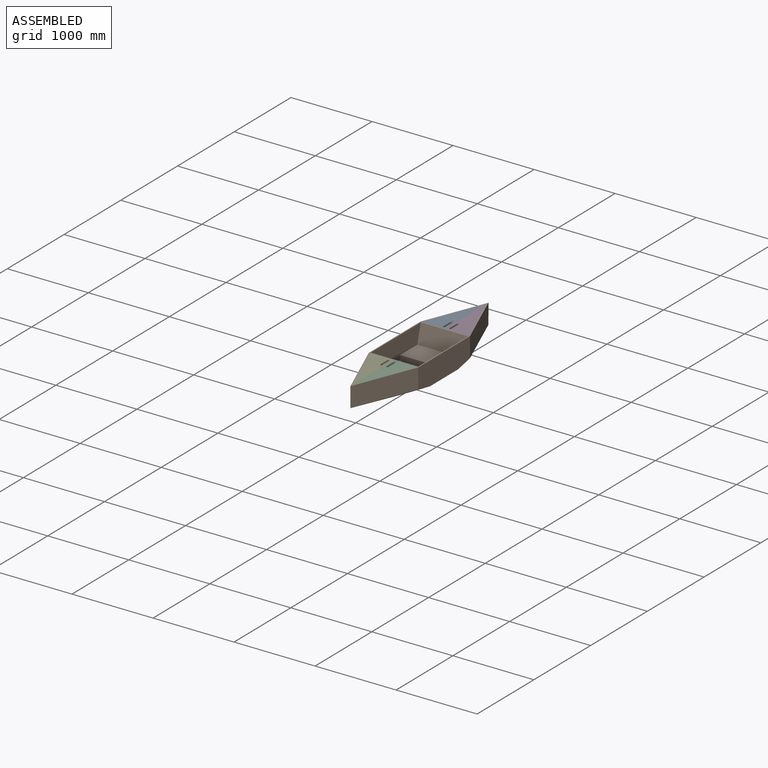
[diagram: assembled view]
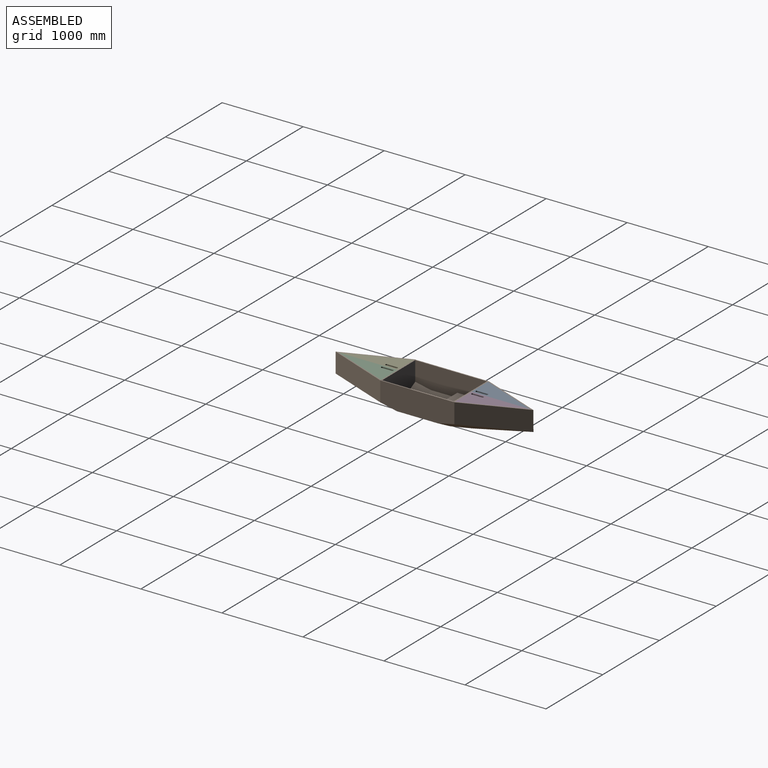
[diagram: assembled view, second angle]
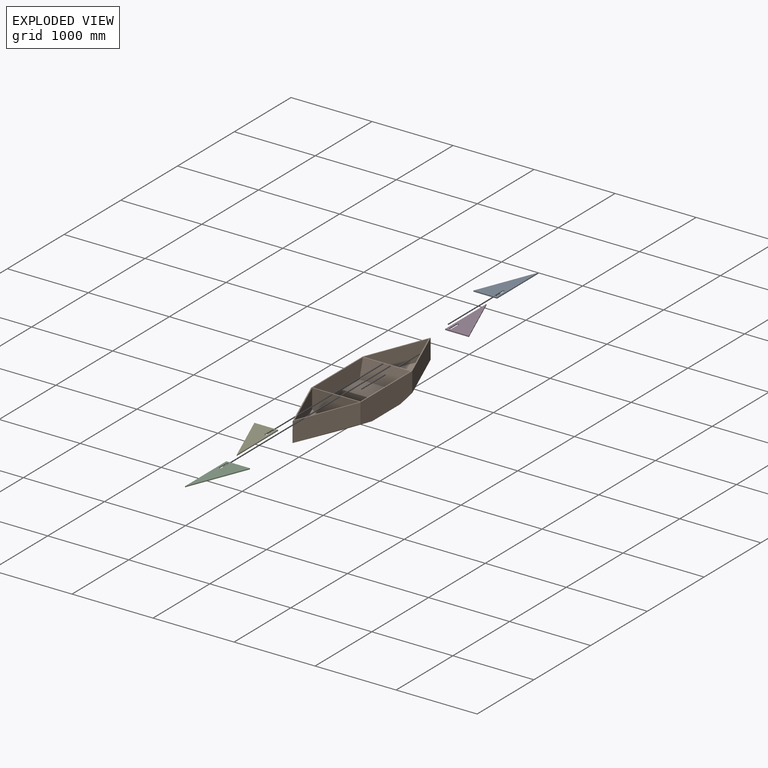
[diagram: exploded view]
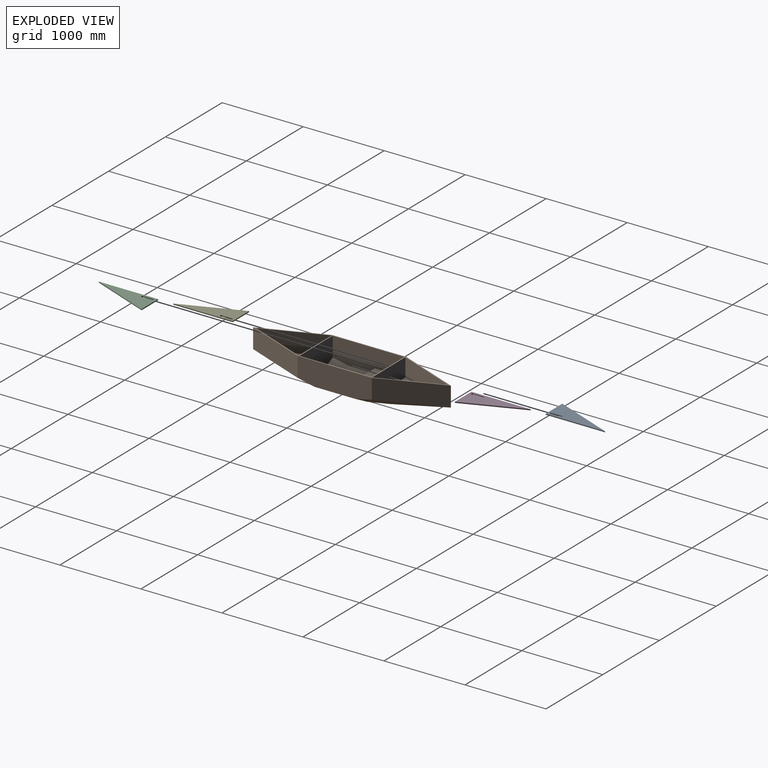
[diagram: exploded view, second angle]
ASSEMBLY  parts=5 mates=4
PART A: 9 faces, bbox 292.1x730.3x12.7 mm
  f0: cylinder r=12.7mm len=25.4mm, axis (0,0,-1), area 506.7mm2, adj f1,f6,f7,f8
  f1: plane 127x12.7mm, normal (1,0,0), area 1612.9mm2, adj f0,f2,f7,f8
  f2: cylinder r=12.7mm len=25.4mm, axis (0,0,-1), area 506.7mm2, adj f1,f6,f7,f8
  f3: plane 730.25x292.1mm, normal (0.93,0.37,0), area 9988.6mm2, adj f4,f5,f7,f8
  f4: plane 730.25x12.7mm, normal (-1,0,0), area 9274.2mm2, adj f3,f5,f7,f8
  f5: plane 292.1x12.7mm, normal (0,-1,0), area 3709.7mm2, adj f3,f4,f7,f8
  f6: plane 127x12.7mm, normal (-1,0,0), area 1612.9mm2, adj f0,f2,f7,f8
  f7: plane 730.25x292.1mm, normal (0,0,1), area 102920.5mm2, adj f0,f1,f2,f3,f4,f5,f6
  f8: plane 730.25x292.1mm, normal (0,0,-1), area 102920.5mm2, adj f0,f1,f2,f3,f4,f5,f6
PART B: 61 faces, bbox 609.6x2438.4x406.4 mm
  f0: plane 584.2x225.06mm, normal (0,1,0), area 131477.7mm2, adj f14,f25,f26,f47
  f1: plane 969.62x304.8mm, normal (-0.46,-0.19,-0.87), area 196259.8mm2, adj f2,f6,f19,f20,f21,f44,f46
  f2: plane 969.62x304.8mm, normal (0.46,-0.19,-0.87), area 196259.7mm2, adj f1,f7,f15,f16,f21,f42,f45
  f3: plane 2.98x2.38mm, normal (0,0,1), area 3.5mm2, adj f4,f5,f39
  f4: plane 730.25x292.1mm, normal (0.46,0.19,0.87), area 123150.2mm2, adj f3,f5,f27,f39
  f5: plane 730.25x292.1mm, normal (-0.46,0.19,0.87), area 123150.2mm2, adj f3,f4,f24,f39
  f6: plane 499.16x217.88mm, normal (-0.47,0,-0.88), area 123396.4mm2, adj f1,f19,f21,f22
  f7: plane 499.16x217.88mm, normal (0.47,0,-0.88), area 123396.4mm2, adj f2,f16,f21,f23
  f8: plane 883.66x282mm, normal (-1,0,0), area 217597.3mm2, adj f13,f14,f32,f34,f35,f38,f40
  f9: plane 365.55x44.25mm, normal (-1,0,0), area 11609.5mm2, adj f13,f30,f33,f36
  f10: plane 365.55x44.25mm, normal (1,0,0), area 11609.5mm2, adj f12,f29,f33,f36
  f11: plane 883.66x282mm, normal (1,0,0), area 217597.3mm2, adj f12,f14,f31,f34,f35,f38,f40
  f12: plane 496.79x208.37mm, normal (0.47,0,0.88), area 114540.2mm2, adj f10,f11,f28,f29,f31,f36,f37,f38
  f13: plane 496.79x208.37mm, normal (-0.47,0,0.88), area 114540.2mm2, adj f8,f9,f28,f30,f32,f36,f37,f38
  f14: plane 2438.4x609.6mm, normal (0,0,1), area 78960.3mm2, adj f0,f8,f11,f15,f16,f17,f18,f19
  f15: plane 762x304.8mm, normal (0.93,-0.37,0), area 201143.8mm2, adj f2,f14,f16,f20
  f16: plane 914.4x289.61mm, normal (1,0,0), area 255573.2mm2, adj f2,f7,f14,f15,f17,f23
  f17: plane 762x304.8mm, normal (0.93,0.37,0), area 201143.8mm2, adj f14,f16,f18,f23
  f18: plane 762x304.8mm, normal (-0.93,0.37,0), area 201143.8mm2, adj f14,f17,f19,f22
  f19: plane 914.4x289.61mm, normal (-1,0,0), area 255573.2mm2, adj f1,f6,f14,f18,f20,f22
  f20: plane 762x304.8mm, normal (-0.93,-0.37,0), area 201143.8mm2, adj f1,f14,f15,f19
  f21: plane 933.79x173.85mm, normal (0,0,-1), area 124557.8mm2, adj f1,f2,f6,f7,f22,f23
  f22: plane 969.62x304.8mm, normal (-0.46,0.19,-0.87), area 196259.8mm2, adj f6,f18,f19,f21,f23
  f23: plane 969.62x304.8mm, normal (0.46,0.19,-0.87), area 196259.8mm2, adj f7,f16,f17,f21,f22
  f24: plane 730.25x292.1mm, normal (-0.93,0.37,0), area 186995.9mm2, adj f5,f14,f27,f39
  f25: plane 730.25x292.1mm, normal (-0.93,-0.37,0), area 177007.3mm2, adj f0,f14,f26,f47
  f26: plane 730.25x292.1mm, normal (0.93,-0.37,0), area 177007.3mm2, adj f0,f14,f25,f47
  f27: plane 730.25x292.1mm, normal (0.93,0.37,0), area 186995.9mm2, adj f4,f14,f24,f39
  f28: plane 899.78x167.47mm, normal (0,0,1), area 118155.8mm2, adj f12,f13,f29,f30,f31,f32,f40
  f29: plane 936.61x292.1mm, normal (0.46,-0.19,0.87), area 182635.3mm2, adj f10,f12,f28,f30,f33
  f30: plane 936.61x292.1mm, normal (-0.46,-0.19,0.87), area 182635.3mm2, adj f9,f13,f28,f29,f33
  f31: plane 285.83x193.66mm, normal (0.46,0.19,0.87), area 55256.2mm2, adj f11,f12,f28,f40
  f32: plane 285.83x193.66mm, normal (-0.46,0.19,0.87), area 55256.2mm2, adj f8,f13,f28,f40
  f33: plane 1095.8x584.2mm, normal (0,0,-1), area 426861.3mm2, adj f9,f10,f29,f30,f36
  f34: plane 584.2x304.8mm, normal (0,0,1), area 178064.2mm2, adj f8,f11,f35,f38
  f35: plane 584.2x225.06mm, normal (0,-0.97,0.26), area 136115.7mm2, adj f8,f11,f14,f34
  f36: plane 584.2x152.4mm, normal (0,1,0), area 67212.1mm2, adj f9,f10,f12,f13,f33,f37
  f37: plane 180.69x12.7mm, normal (0,0,-1), area 2294.8mm2, adj f12,f13,f36,f38
  f38: plane 584.2x165.1mm, normal (0,-1,0), area 74631.4mm2, adj f8,f11,f12,f13,f34,f37
  f39: plane 584.2x393.7mm, normal (0,-1,0), area 184633.9mm2, adj f3,f4,f5,f14,f24,f27
  f40: plane 584.2x393.7mm, normal (0,1,0), area 186204.5mm2, adj f8,f11,f14,f28,f31,f32
  f41: plane 0x0mm, normal (0,0,-1), area 0mm2, adj f42,f45
  f42: plane 56.72x30.41mm, normal (0,1,0), area 0mm2, adj f2,f41,f45
  f43: plane 0x0mm, normal (0,0,-1), area 0mm2, adj f44,f46
  f44: plane 56.72x30.41mm, normal (0,1,0), area 0mm2, adj f1,f43,f46
  f45: plane 56.72x30.41mm, normal (0.17,-0.93,-0.32), area 0mm2, adj f2,f41,f42
  f46: plane 56.72x30.41mm, normal (-0.18,-0.93,-0.33), area 0mm2, adj f1,f43,f44
  f47: plane 730.25x584.2mm, normal (0,0,1), area 213306mm2, adj f0,f25,f26
  f48: cylinder r=3.17mm len=50.8mm, axis (0,0,1), area 1013.4mm2, adj f14,f49
  f49: plane 6.35x6.35mm, normal (0,0,1), area 31.7mm2, adj f48
  f50: cylinder r=3.17mm len=50.8mm, axis (0,0,1), area 1013.4mm2, adj f14,f51
  f51: plane 6.35x6.35mm, normal (0,0,1), area 31.7mm2, adj f50
  f52: cylinder r=3.17mm len=50.8mm, axis (0,0,1), area 1013.4mm2, adj f14,f53
  f53: plane 6.35x6.35mm, normal (0,0,1), area 31.7mm2, adj f52
  f54: cylinder r=3.17mm len=50.8mm, axis (0,0,1), area 1013.4mm2, adj f14,f55
  f55: plane 6.35x6.35mm, normal (0,0,1), area 31.7mm2, adj f54
  f56: plane 584.2x47.6mm, normal (0,0,1), area 27810mm2, adj f57,f58,f59,f60
  f57: plane 584.2x177.66mm, normal (0,-1,0), area 103788.4mm2, adj f56,f58,f59,f60
  f58: plane 584.2x177.66mm, normal (0,0.97,-0.26), area 107449.6mm2, adj f56,f57,f59,f60
  f59: plane 177.66x47.6mm, normal (1,0,0), area 4228.6mm2, adj f56,f57,f58
  f60: plane 177.66x47.6mm, normal (-1,0,0), area 4228.6mm2, adj f56,f57,f58
PART C: same geometry as A
PART D: same geometry as A
PART E: same geometry as A
PLACE A rot(axis=(0,-1,0),179.9deg) t=(-1147.58,702.63,246.19)mm
PLACE B rot(axis=(-0.2,0.73,0.65),0.1deg) t=(-0.63,123.5,-161.64)mm fixed
PLACE C rot(axis=(1,0,0),180deg) t=(1147.5,-455.31,243.32)mm
PLACE D rot(axis=(-0.2,0.73,0.65),0.1deg) t=(1145.96,705.63,230.15)mm
PLACE E rot(axis=(0,0,-1),179.9deg) t=(-1146.07,-458.32,233.96)mm
MATE fastened A.f5 <-> B.f0  axis (0,-1,0) through (-292.73,578.04,245)mm
MATE fastened D.f5 <-> B.f0  axis (0,-1,0) through (291.46,578.8,244.15)mm
MATE fastened B.f39 <-> C.f5  axis (0,-1,0) through (292.66,-330.71,244.52)mm
MATE fastened B.f39 <-> E.f5  axis (0,-1,0) through (-291.54,-331.47,245.37)mm
